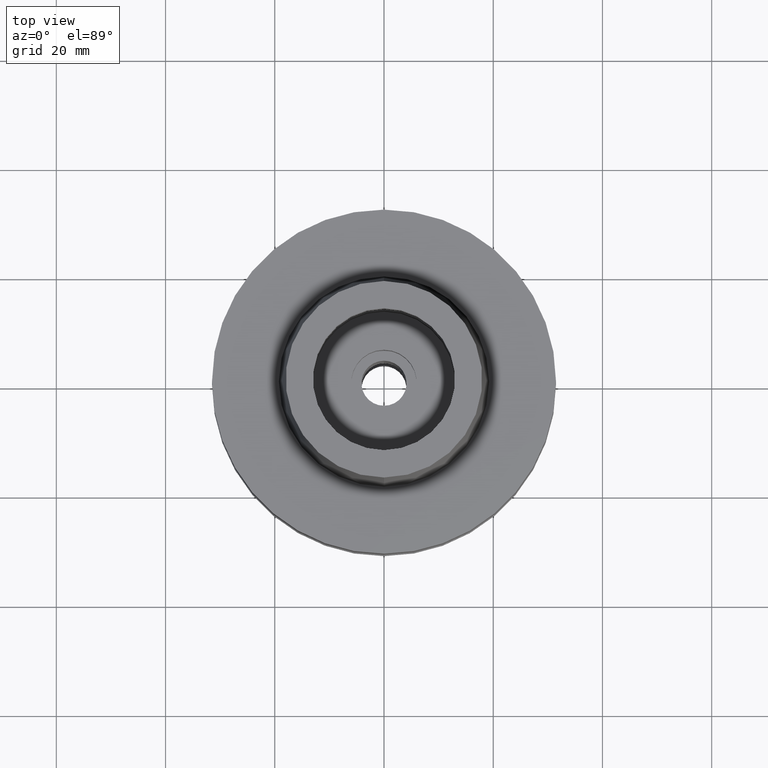
[diagram: clean part render]
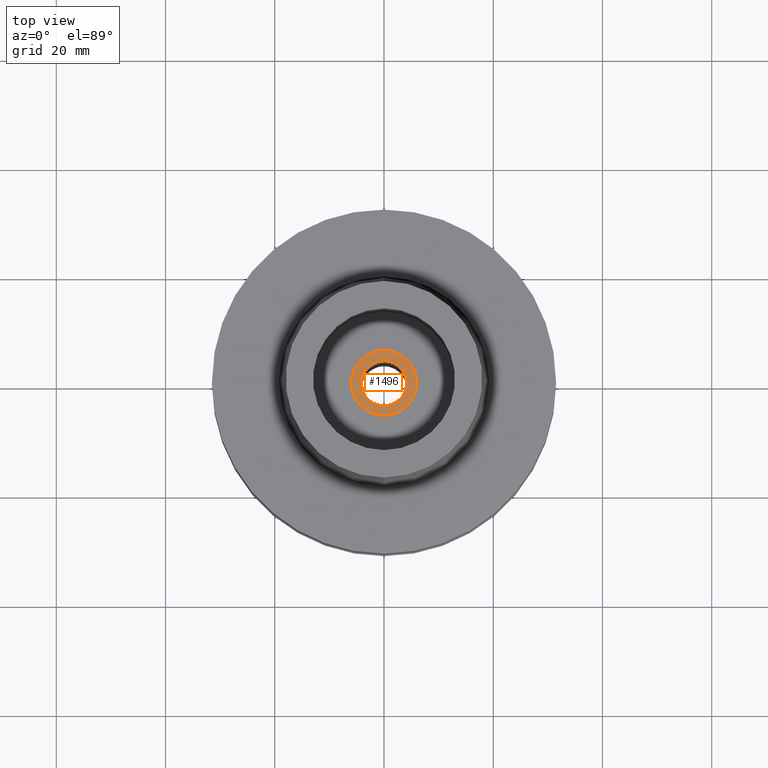
[diagram: same view with one face highlighted and labeled with its STEP entity id]
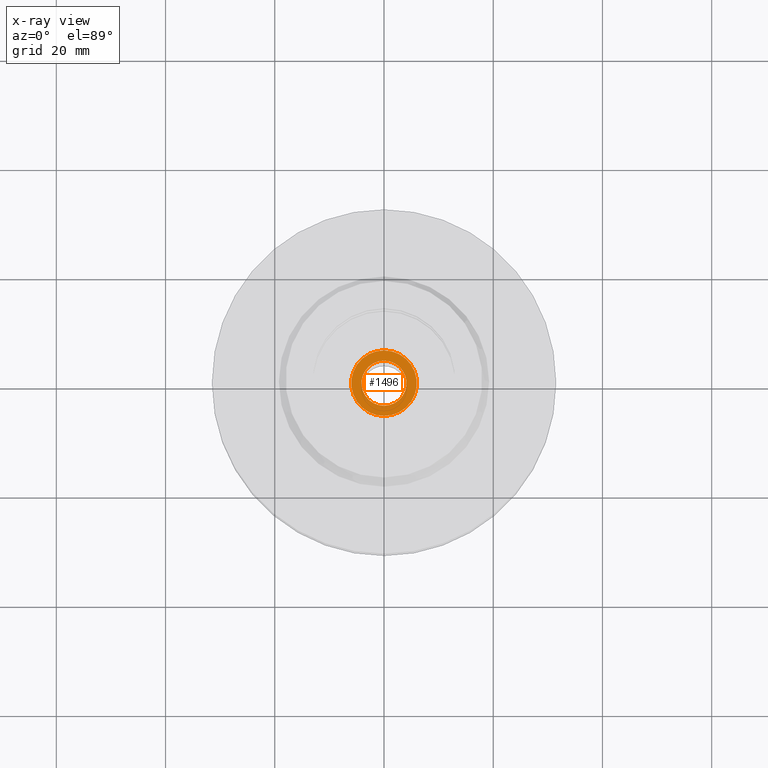
[diagram: x-ray of the same camera — body ghosted, the highlighted face saturated]
A machine part, top view. The second image highlights one B-rep face of the part: STEP entity #1496.
The next image is the same camera in x-ray: the body ghosted, the highlighted face saturated — about 0% of this face is hidden behind the body in this view.
In plain terms, the highlighted planar face has unit normal (0, 0, -1).
Its self-contained STEP definition (entity closure, byte-faithful):
#5 = ORIENTED_EDGE ( 'NONE', *, *, #1531, .F. ) ;
#56 = AXIS2_PLACEMENT_3D ( 'NONE', #1855, #188, #1666 ) ;
#82 = DIRECTION ( 'NONE',  ( 0.0000000000000000000, 0.0000000000000000000, -1.000000000000000000 ) ) ;
#178 = VERTEX_POINT ( 'NONE', #2558 ) ;
#188 = DIRECTION ( 'NONE',  ( 0.0000000000000000000, 0.0000000000000000000, 1.000000000000000000 ) ) ;
#266 = DIRECTION ( 'NONE',  ( 0.0000000000000000000, -1.000000000000000000, 0.0000000000000000000 ) ) ;
#277 = DIRECTION ( 'NONE',  ( 0.0000000000000000000, -1.000000000000000000, 0.0000000000000000000 ) ) ;
#384 = CIRCLE ( 'NONE', #1290, 4.125000000000000000 ) ;
#451 = DIRECTION ( 'NONE',  ( 0.0000000000000000000, 0.0000000000000000000, 1.000000000000000000 ) ) ;
#473 = ORIENTED_EDGE ( 'NONE', *, *, #1369, .F. ) ;
#513 = AXIS2_PLACEMENT_3D ( 'NONE', #521, #82, #277 ) ;
#521 = CARTESIAN_POINT ( 'NONE',  ( 0.0000000000000000000, 1.589224151253999740E-14, -16.94999999999999929 ) ) ;
#707 = ORIENTED_EDGE ( 'NONE', *, *, #2482, .F. ) ;
#716 = VERTEX_POINT ( 'NONE', #2165 ) ;
#890 = DIRECTION ( 'NONE',  ( 0.0000000000000000000, 0.0000000000000000000, -1.000000000000000000 ) ) ;
#896 = FACE_OUTER_BOUND ( 'NONE', #1912, .T. ) ;
#906 = CIRCLE ( 'NONE', #56, 4.125000000000000000 ) ;
#940 = PLANE ( 'NONE',  #1779 ) ;
#1081 = CARTESIAN_POINT ( 'NONE',  ( 0.0000000000000000000, -4.125000000000000000, -16.94999999999999929 ) ) ;
#1084 = AXIS2_PLACEMENT_3D ( 'NONE', #2553, #890, #1904 ) ;
#1093 = ORIENTED_EDGE ( 'NONE', *, *, #2525, .F. ) ;
#1216 = CIRCLE ( 'NONE', #1084, 6.000000000000000000 ) ;
#1290 = AXIS2_PLACEMENT_3D ( 'NONE', #2336, #451, #2126 ) ;
#1309 = FACE_BOUND ( 'NONE', #2302, .T. ) ;
#1369 = EDGE_CURVE ( 'NONE', #716, #1374, #384, .T. ) ;
#1374 = VERTEX_POINT ( 'NONE', #1081 ) ;
#1496 = ADVANCED_FACE ( 'NONE', ( #896, #1309 ), #940, .F. ) ;
#1531 = EDGE_CURVE ( 'NONE', #178, #1667, #2491, .T. ) ;
#1666 = DIRECTION ( 'NONE',  ( 0.0000000000000000000, -1.000000000000000000, 0.0000000000000000000 ) ) ;
#1667 = VERTEX_POINT ( 'NONE', #2662 ) ;
#1718 = DIRECTION ( 'NONE',  ( 0.0000000000000000000, 0.0000000000000000000, -1.000000000000000000 ) ) ;
#1779 = AXIS2_PLACEMENT_3D ( 'NONE', #2195, #1718, #266 ) ;
#1855 = CARTESIAN_POINT ( 'NONE',  ( 0.0000000000000000000, 1.589224151253999740E-14, -16.94999999999999929 ) ) ;
#1904 = DIRECTION ( 'NONE',  ( 0.0000000000000000000, 1.000000000000000000, 0.0000000000000000000 ) ) ;
#1912 = EDGE_LOOP ( 'NONE', ( #707, #5 ) ) ;
#2126 = DIRECTION ( 'NONE',  ( 0.0000000000000000000, 1.000000000000000000, 0.0000000000000000000 ) ) ;
#2165 = CARTESIAN_POINT ( 'NONE',  ( 0.0000000000000000000, 4.125000000000000000, -16.94999999999999929 ) ) ;
#2195 = CARTESIAN_POINT ( 'NONE',  ( 0.0000000000000000000, 1.017069166691999919E-14, -16.94999999999999929 ) ) ;
#2302 = EDGE_LOOP ( 'NONE', ( #473, #1093 ) ) ;
#2336 = CARTESIAN_POINT ( 'NONE',  ( 0.0000000000000000000, 1.589224151253999740E-14, -16.94999999999999929 ) ) ;
#2482 = EDGE_CURVE ( 'NONE', #1667, #178, #1216, .T. ) ;
#2491 = CIRCLE ( 'NONE', #513, 6.000000000000000000 ) ;
#2525 = EDGE_CURVE ( 'NONE', #1374, #716, #906, .T. ) ;
#2553 = CARTESIAN_POINT ( 'NONE',  ( 0.0000000000000000000, 1.589224151253999740E-14, -16.94999999999999929 ) ) ;
#2558 = CARTESIAN_POINT ( 'NONE',  ( 0.0000000000000000000, -6.000000000000000000, -16.94999999999999929 ) ) ;
#2662 = CARTESIAN_POINT ( 'NONE',  ( 0.0000000000000000000, 6.000000000000000000, -16.94999999999999929 ) ) ;